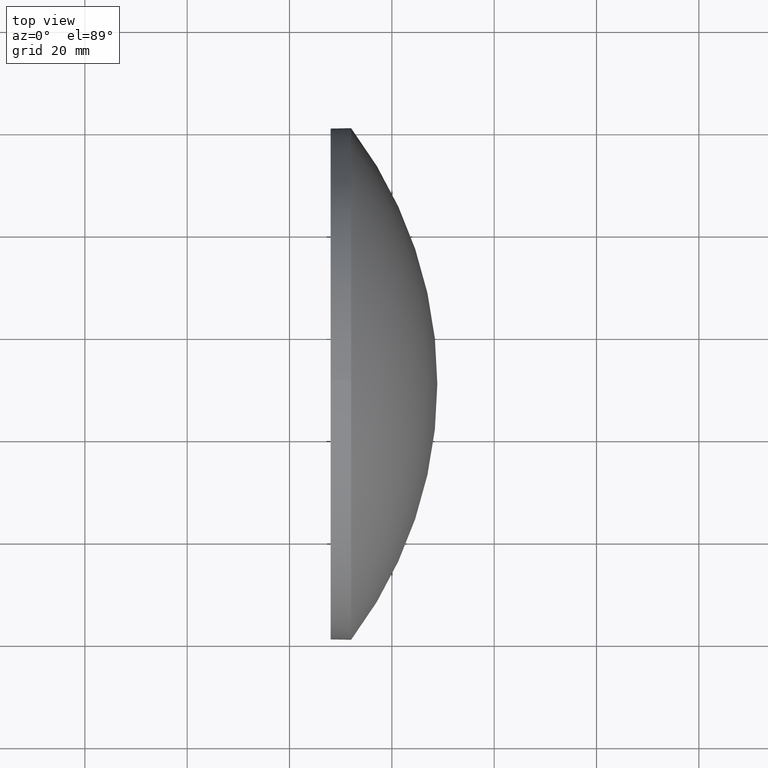
[diagram: clean part render]
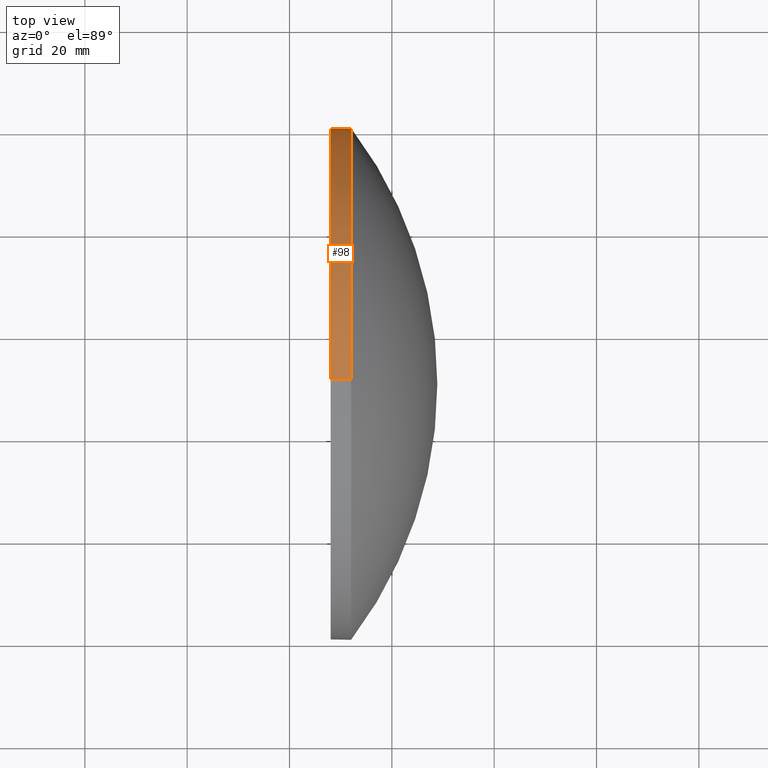
[diagram: same view with one face highlighted and labeled with its STEP entity id]
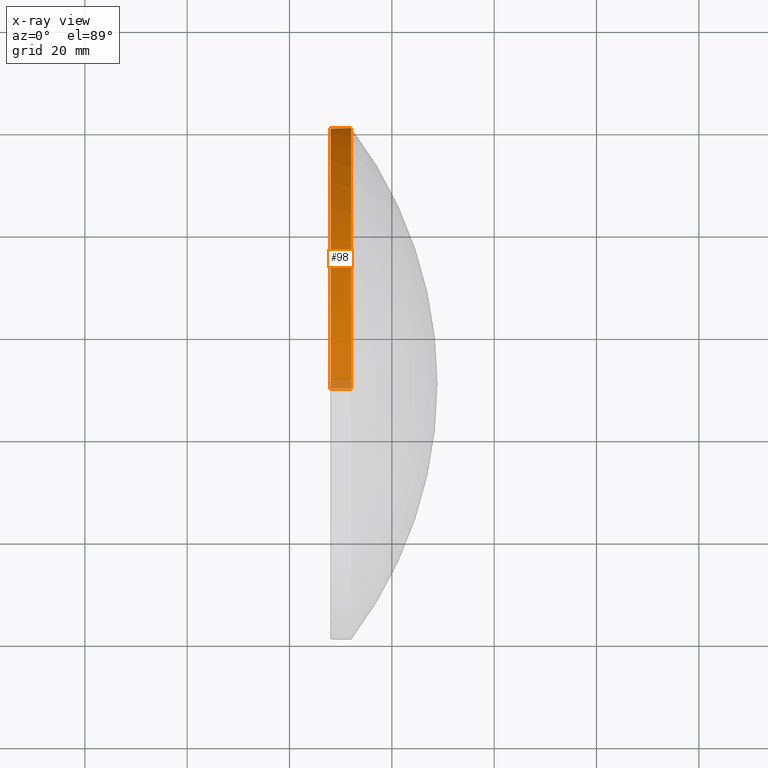
[diagram: x-ray of the same camera — body ghosted, the highlighted face saturated]
A machine part, top view. The second image highlights one B-rep face of the part: STEP entity #98.
The next image is the same camera in x-ray: the body ghosted, the highlighted face saturated — about 3% of this face is hidden behind the body in this view.
In plain terms, the highlighted cylindrical surface (partial cylindrical patch) has radius 50 mm, axis along (-1, -0, -0).
Its self-contained STEP definition (entity closure, byte-faithful):
#8 = VERTEX_POINT ( 'NONE', #71 ) ;
#11 = AXIS2_PLACEMENT_3D ( 'NONE', #26, #122, #140 ) ;
#25 = VECTOR ( 'NONE', #66, 1000.000000000000000 ) ;
#26 = CARTESIAN_POINT ( 'NONE',  ( 589.4330370124314400, 50.38150423912338700, 0.0000000000000000000 ) ) ;
#29 = AXIS2_PLACEMENT_3D ( 'NONE', #173, #119, #51 ) ;
#33 = EDGE_CURVE ( 'NONE', #177, #112, #183, .T. ) ;
#36 = CIRCLE ( 'NONE', #29, 49.99999999999999300 ) ;
#39 = CIRCLE ( 'NONE', #73, 49.99999999999999300 ) ;
#43 = EDGE_CURVE ( 'NONE', #8, #112, #78, .T. ) ;
#49 = ORIENTED_EDGE ( 'NONE', *, *, #33, .T. ) ;
#51 = DIRECTION ( 'NONE',  ( 0.0000000000000000000, 0.0000000000000000000, 1.000000000000000000 ) ) ;
#52 = AXIS2_PLACEMENT_3D ( 'NONE', #93, #105, #151 ) ;
#56 = ORIENTED_EDGE ( 'NONE', *, *, #102, .F. ) ;
#59 = VERTEX_POINT ( 'NONE', #139 ) ;
#61 = DIRECTION ( 'NONE',  ( 0.0000000000000000000, 0.0000000000000000000, 1.000000000000000000 ) ) ;
#64 = CARTESIAN_POINT ( 'NONE',  ( 612.0407957807756200, 50.38150423912338700, 0.0000000000000000000 ) ) ;
#66 = DIRECTION ( 'NONE',  ( -1.000000000000000000, -0.0000000000000000000, -0.0000000000000000000 ) ) ;
#71 = CARTESIAN_POINT ( 'NONE',  ( 608.0407957807756200, 50.38150423912338700, 49.99999999999999300 ) ) ;
#73 = AXIS2_PLACEMENT_3D ( 'NONE', #64, #127, #61 ) ;
#78 = CIRCLE ( 'NONE', #52, 49.99999999999999300 ) ;
#84 = ORIENTED_EDGE ( 'NONE', *, *, #43, .F. ) ;
#86 = CARTESIAN_POINT ( 'NONE',  ( 612.0407957807756200, 100.3815042391234000, 0.0000000000000000000 ) ) ;
#90 = EDGE_LOOP ( 'NONE', ( #145, #49, #84, #56, #108 ) ) ;
#92 = CARTESIAN_POINT ( 'NONE',  ( 589.4330370124314400, 50.38150423912339400, -49.99999999999999300 ) ) ;
#93 = CARTESIAN_POINT ( 'NONE',  ( 608.0407957807756200, 50.38150423912338700, 0.0000000000000000000 ) ) ;
#98 = ADVANCED_FACE ( 'NONE', ( #148 ), #104, .T. ) ;
#100 = CARTESIAN_POINT ( 'NONE',  ( 589.4330370124314400, 50.38150423912338700, 49.99999999999999300 ) ) ;
#102 = EDGE_CURVE ( 'NONE', #59, #8, #176, .T. ) ;
#104 = CYLINDRICAL_SURFACE ( 'NONE', #11, 49.99999999999999300 ) ;
#105 = DIRECTION ( 'NONE',  ( -1.000000000000000000, -0.0000000000000000000, -0.0000000000000000000 ) ) ;
#108 = ORIENTED_EDGE ( 'NONE', *, *, #180, .T. ) ;
#112 = VERTEX_POINT ( 'NONE', #118 ) ;
#118 = CARTESIAN_POINT ( 'NONE',  ( 608.0407957807756200, 50.38150423912339400, -49.99999999999999300 ) ) ;
#119 = DIRECTION ( 'NONE',  ( -1.000000000000000000, -0.0000000000000000000, -0.0000000000000000000 ) ) ;
#122 = DIRECTION ( 'NONE',  ( -1.000000000000000000, -0.0000000000000000000, -0.0000000000000000000 ) ) ;
#126 = VECTOR ( 'NONE', #178, 1000.000000000000000 ) ;
#127 = DIRECTION ( 'NONE',  ( -1.000000000000000000, -0.0000000000000000000, -0.0000000000000000000 ) ) ;
#139 = CARTESIAN_POINT ( 'NONE',  ( 612.0407957807756200, 50.38150423912338700, 49.99999999999999300 ) ) ;
#140 = DIRECTION ( 'NONE',  ( 0.0000000000000000000, 0.0000000000000000000, 1.000000000000000000 ) ) ;
#145 = ORIENTED_EDGE ( 'NONE', *, *, #162, .T. ) ;
#148 = FACE_OUTER_BOUND ( 'NONE', #90, .T. ) ;
#151 = DIRECTION ( 'NONE',  ( 0.0000000000000000000, 0.0000000000000000000, 1.000000000000000000 ) ) ;
#162 = EDGE_CURVE ( 'NONE', #174, #177, #36, .T. ) ;
#173 = CARTESIAN_POINT ( 'NONE',  ( 612.0407957807756200, 50.38150423912338700, 0.0000000000000000000 ) ) ;
#174 = VERTEX_POINT ( 'NONE', #86 ) ;
#176 = LINE ( 'NONE', #100, #25 ) ;
#177 = VERTEX_POINT ( 'NONE', #186 ) ;
#178 = DIRECTION ( 'NONE',  ( -1.000000000000000000, -0.0000000000000000000, -0.0000000000000000000 ) ) ;
#180 = EDGE_CURVE ( 'NONE', #59, #174, #39, .T. ) ;
#183 = LINE ( 'NONE', #92, #126 ) ;
#186 = CARTESIAN_POINT ( 'NONE',  ( 612.0407957807756200, 50.38150423912339400, -49.99999999999999300 ) ) ;